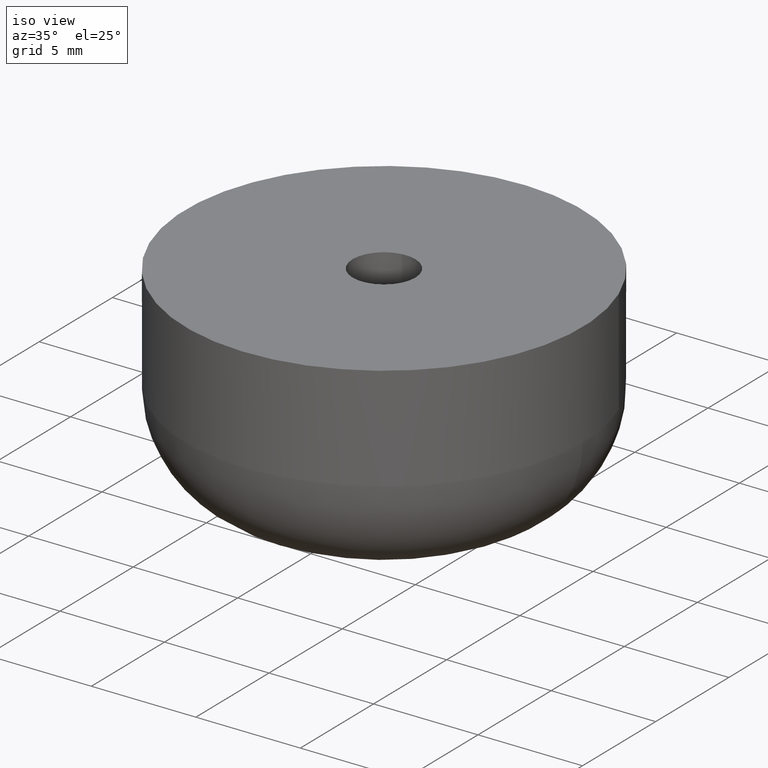
[diagram: clean part render]
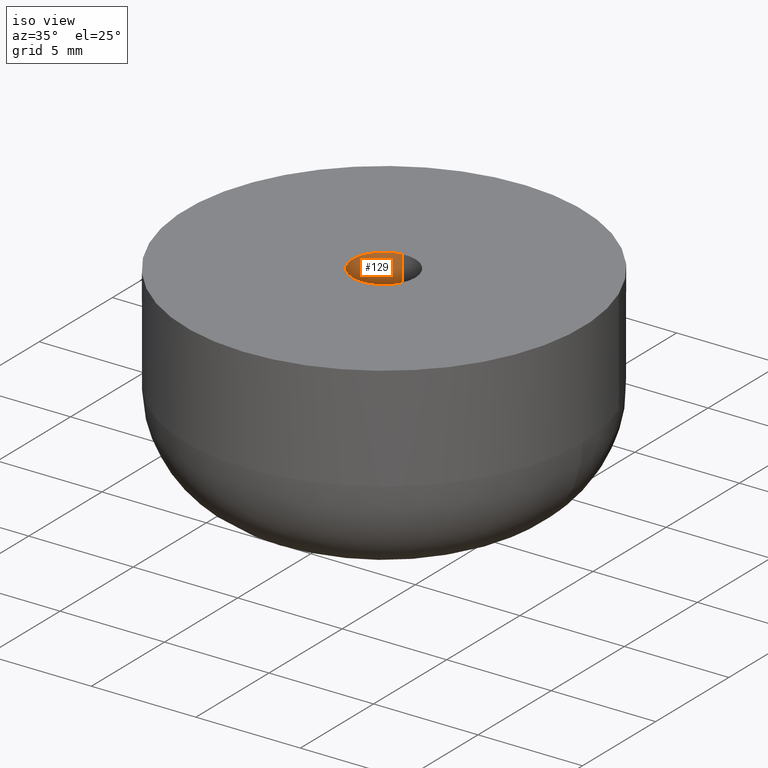
[diagram: same view with one face highlighted and labeled with its STEP entity id]
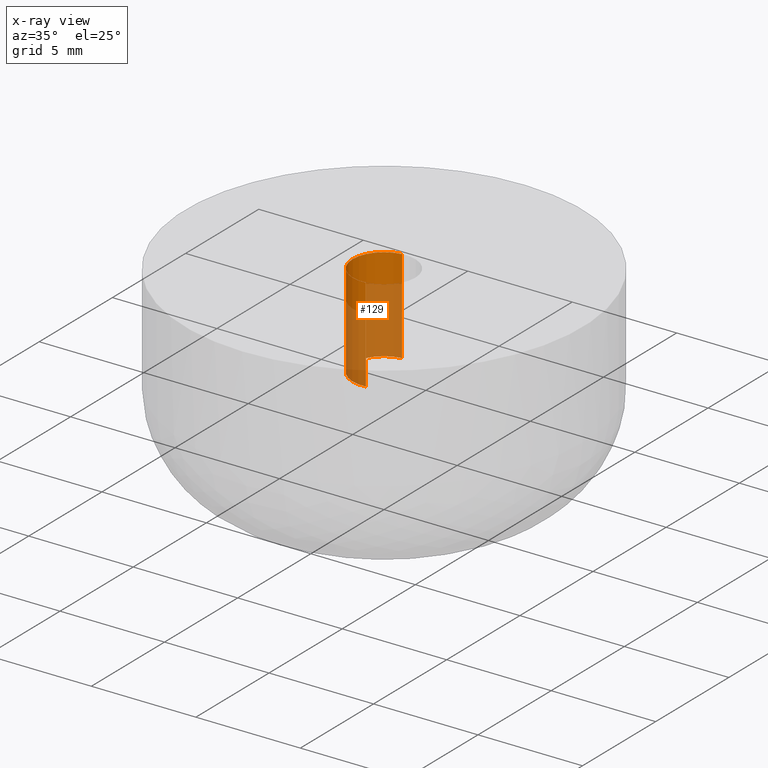
[diagram: x-ray of the same camera — body ghosted, the highlighted face saturated]
A machine part, iso view. The second image highlights one B-rep face of the part: STEP entity #129.
The next image is the same camera in x-ray: the body ghosted, the highlighted face saturated — about 65% of this face is hidden behind the body in this view.
In plain terms, the highlighted cylindrical surface (partial cylindrical patch) has radius 1.5 mm, axis along (-0, 0, -1).
Its self-contained STEP definition (entity closure, byte-faithful):
#129=ADVANCED_FACE('',(#309),#308,.F.);
#308=CYLINDRICAL_SURFACE('',#474,1.50000000000E+000);
#309=FACE_OUTER_BOUND('',#475,.T.);
#471=CARTESIAN_POINT('',(-3.86642984204E-016,3.34626795676E-016,7.75000000000E+000));
#472=DIRECTION('',(-1.37605291648E-015,4.32722529054E-016,-1.00000000000E+000));
#473=DIRECTION('',(-1.18034234657E-001,9.93009526364E-001,5.92118946467E-016));
#474=AXIS2_PLACEMENT_3D('',#471,#472,#473);
#475=EDGE_LOOP('',(#558,#559,#560,#561));
#558=ORIENTED_EDGE('',*,*,#588,.T.);
#559=ORIENTED_EDGE('',*,*,#608,.F.);
#560=ORIENTED_EDGE('',*,*,#596,.F.);
#561=ORIENTED_EDGE('',*,*,#609,.T.);
#588=EDGE_CURVE('',#734,#735,#736,.T.);
#596=EDGE_CURVE('',#790,#791,#792,.T.);
#608=EDGE_CURVE('',#791,#735,#868,.T.);
#609=EDGE_CURVE('',#790,#734,#874,.T.);
#734=VERTEX_POINT('',#970);
#735=VERTEX_POINT('',#971);
#736=CIRCLE('',#975,1.50000000000E+000);
#790=VERTEX_POINT('',#1010);
#791=VERTEX_POINT('',#1011);
#792=CIRCLE('',#1015,1.50000000000E+000);
#868=(BOUNDED_CURVE() B_SPLINE_CURVE(1,(#1058,#1059),.UNSPECIFIED.,.F.,.F.) B_SPLINE_CURVE_WITH_KNOTS((2,2),(8.33333313467E-002,9.16666670832E-001),.UNSPECIFIED.) CURVE() GEOMETRIC_REPRESENTATION_ITEM() RATIONAL_B_SPLINE_CURVE((1.00000000000E+000,1.00000000000E+000)) REPRESENTATION_ITEM('') );
#874=(BOUNDED_CURVE() B_SPLINE_CURVE(1,(#1060,#1061),.UNSPECIFIED.,.F.,.F.) B_SPLINE_CURVE_WITH_KNOTS((2,2),(8.33333333333E-002,9.16666666667E-001),.UNSPECIFIED.) CURVE() GEOMETRIC_REPRESENTATION_ITEM() RATIONAL_B_SPLINE_CURVE((7.50000000000E-001,7.50000000000E-001)) REPRESENTATION_ITEM('') );
#970=CARTESIAN_POINT('',(1.77308843490E-001,-1.48948366021E+000,5.50000000000E+000));
#971=CARTESIAN_POINT('',(-1.77308843490E-001,1.48948366021E+000,5.50000000000E+000));
#972=CARTESIAN_POINT('',(4.44089209850E-016,3.33066907388E-016,5.50000000000E+000));
#973=DIRECTION('',(-4.98917387854E-015,-5.93037093132E-016,-1.00000000000E+000));
#974=DIRECTION('',(-1.18205895660E-001,9.92989106804E-001,8.70393504404E-019));
#975=AXIS2_PLACEMENT_3D('',#972,#973,#974);
#1010=CARTESIAN_POINT('',(1.77050807278E-001,-1.48951435429E+000,1.00000000000E+001));
#1011=CARTESIAN_POINT('',(-1.77051351985E-001,1.48951428955E+000,1.00000000000E+001));
#1012=CARTESIAN_POINT('',(4.44089209850E-016,3.33066907388E-016,1.00000000000E+001));
#1013=DIRECTION('',(2.01320441799E-014,2.42157558079E-015,-1.00000000000E+000));
#1014=DIRECTION('',(1.18033871519E-001,-9.93009569528E-001,-2.83846089218E-017));
#1015=AXIS2_PLACEMENT_3D('',#1012,#1013,#1014);
#1058=CARTESIAN_POINT('',(-1.77051351985E-001,1.48951428955E+000,1.00000000107E+001));
#1059=CARTESIAN_POINT('',(-1.77051351985E-001,1.48951428955E+000,5.49999997751E+000));
#1060=CARTESIAN_POINT('',(1.77051351985E-001,-1.48951428955E+000,1.00000000000E+001));
#1061=CARTESIAN_POINT('',(1.77051351985E-001,-1.48951428955E+000,5.50000000000E+000));